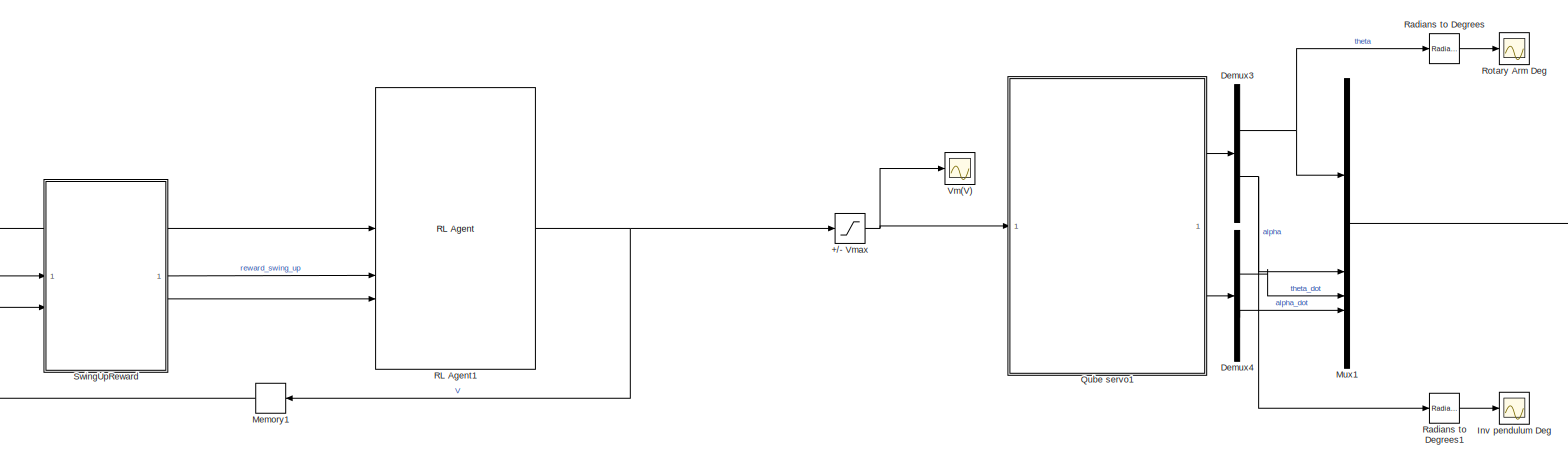
[diagram: root canvas - part 1/1, most of the canvas]
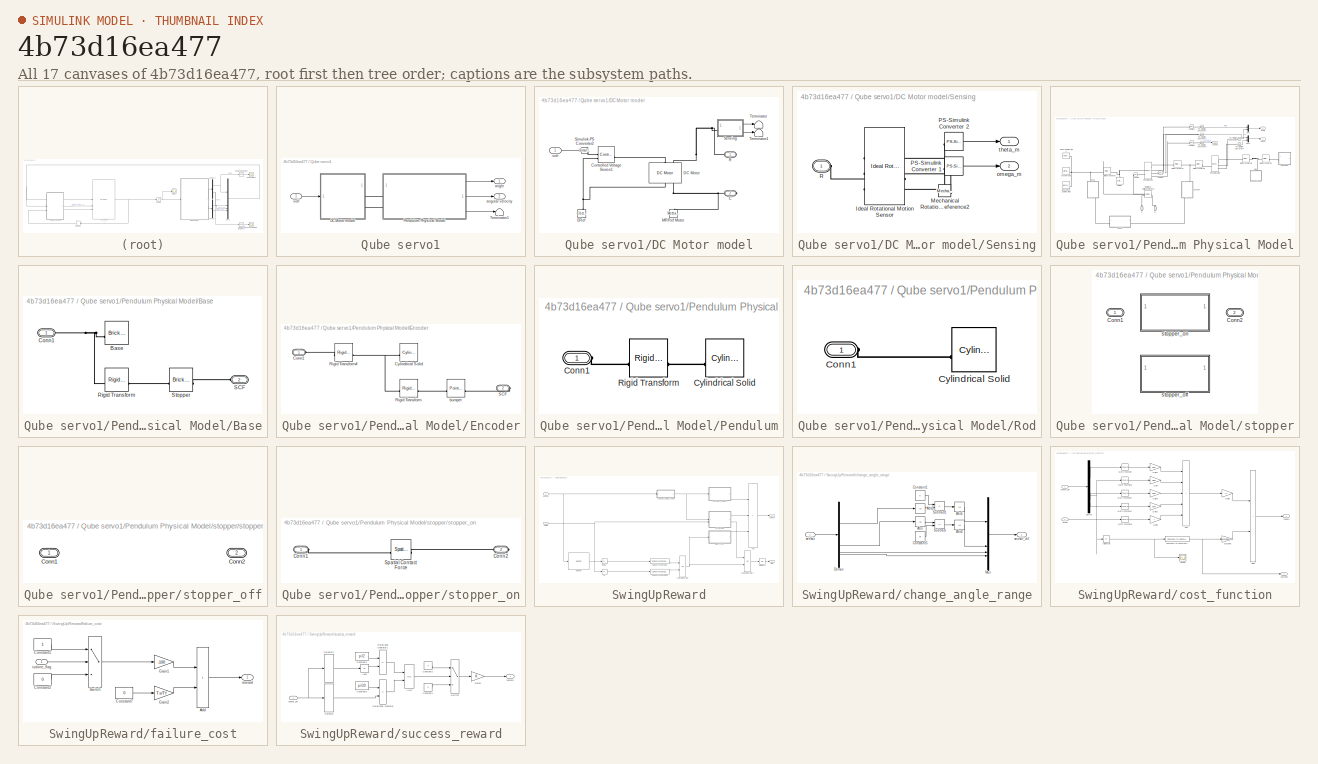
[diagram: thumbnail index - all 17 canvases of the model, root first then tree order]
MODEL slx_4b73d16ea477
KIND model
CONFIG AbsTol = auto
CONFIG EnableMultiTasking = off
CONFIG FixedStep = auto
CONFIG MaxStep = auto
CONFIG MinStep = auto
CONFIG RelTol = 1e-3
CONFIG SampleTimeConstraint = Unconstrained
CONFIG SolverName = VariableStepAuto
CONFIG StartTime = 0.0
CONFIG StopTime = 10.0
BLOCK [Saturate] +//- Vmax
  LowerLimit = -Vmax
  UpperLimit = Vmax
BLOCK [Demux] Demux3
  Outputs = 2
BLOCK [Demux] Demux4
  Outputs = 2
BLOCK [Scope] Inv pendulum Deg
  Floating = off
  NumInputPorts = 1
  ScopeSpecificationString = Simulink.scopes.TimeScopeBlockCfg('CurrentConfiguration', extmgr.ConfigurationSet(extmgr.Configuration('Core','General UI',true),extmgr.Configuration('Core','Source UI',true),extmgr.Configuration('Sources','WiredSimulink',true,'DataLoggingVariableName','ScopeData1'),extmgr.Configuration('Visuals','Time Domain',true,'SerializedDisplays',{struct('MinYLimReal','112.10725','MaxYLimReal','139.96479','Y...<+1439ch>
BLOCK [Memory] Memory1
BLOCK [Mux] Mux1
  DisplayOption = bar
BLOCK [SubSystem] Qube servo1
BLOCK [SubSystem] Qube servo1/DC Motor model
BLOCK [PMIOPort] Qube servo1/DC Motor model/C
  Port = 2
  Side = Right
BLOCK [Reference] Qube servo1/DC Motor model/Controlled Voltage Source1  REF=fl_lib/Electrical/Electrical Sources/Controlled Voltage
Source
  SourceBlock = fl_lib/Electrical/Electrical Sources/Controlled Voltage\nSource
  SourceType = Controlled Voltage\nSource
BLOCK [Reference] Qube servo1/DC Motor model/DC Motor  REF=ee_lib/Electromechanical/Brushed Motors/DC Motor
  NameLocation = left
  SourceBlock = ee_lib/Electromechanical/Brushed Motors/DC Motor
  SourceType = DC Motor
BLOCK [Reference] Qube servo1/DC Motor model/ERef  REF=fl_lib/Electrical/Electrical Elements/Electrical Reference
  NameLocation = right
  SourceBlock = fl_lib/Electrical/Electrical Elements/Electrical Reference
  SourceType = Electrical Reference
BLOCK [Reference] Qube servo1/DC Motor model/MRRef Motor  REF=fl_lib/Mechanical/Rotational Elements/Mechanical
Rotational Reference
  NameLocation = left
  SourceBlock = fl_lib/Mechanical/Rotational Elements/Mechanical\nRotational Reference
  SourceType = Mechanical\nRotational Reference
BLOCK [PMIOPort] Qube servo1/DC Motor model/R
  Side = Right
BLOCK [SubSystem] Qube servo1/DC Motor model/Sensing
BLOCK [Reference] Qube servo1/DC Motor model/Sensing/Ideal Rotational Motion Sensor  REF=fl_lib/Mechanical/Mechanical Sensors/Ideal Rotational
Motion Sensor
  NameLocation = top
  SourceBlock = fl_lib/Mechanical/Mechanical Sensors/Ideal Rotational\nMotion Sensor
  SourceType = Ideal Rotational\nMotion Sensor
BLOCK [Reference] Qube servo1/DC Motor model/Sensing/Mechanical Rotational Reference2  REF=fl_lib/Mechanical/Rotational Elements/Mechanical
Rotational Reference
  SourceBlock = fl_lib/Mechanical/Rotational Elements/Mechanical\nRotational Reference
  SourceType = Mechanical\nRotational Reference
BLOCK [Reference] Qube servo1/DC Motor model/Sensing/PS-Simulink Converter 1  REF=nesl_utility/PS-Simulink
Converter
  SourceBlock = nesl_utility/PS-Simulink\nConverter
  SourceType = PS-Simulink\nConverter
BLOCK [Reference] Qube servo1/DC Motor model/Sensing/PS-Simulink Converter 2  REF=nesl_utility/PS-Simulink
Converter
  SourceBlock = nesl_utility/PS-Simulink\nConverter
  SourceType = PS-Simulink\nConverter
BLOCK [PMIOPort] Qube servo1/DC Motor model/Sensing/R
  NameLocation = top
  Side = Left
BLOCK [Outport] Qube servo1/DC Motor model/Sensing/omega_m
  Port = 2
  VectorParamsAs1DForOutWhenUnconnected = off
BLOCK [Outport] Qube servo1/DC Motor model/Sensing/theta_m
  VectorParamsAs1DForOutWhenUnconnected = off
BLOCK [Reference] Qube servo1/DC Motor model/Simulink-PS Converter2  REF=nesl_utility/Simulink-PS
Converter
  SourceBlock = nesl_utility/Simulink-PS\nConverter
  SourceType = Simulink-PS\nConverter
BLOCK [Terminator] Qube servo1/DC Motor model/Terminator
BLOCK [Terminator] Qube servo1/DC Motor model/Terminator1
BLOCK [Inport] Qube servo1/DC Motor model/volt
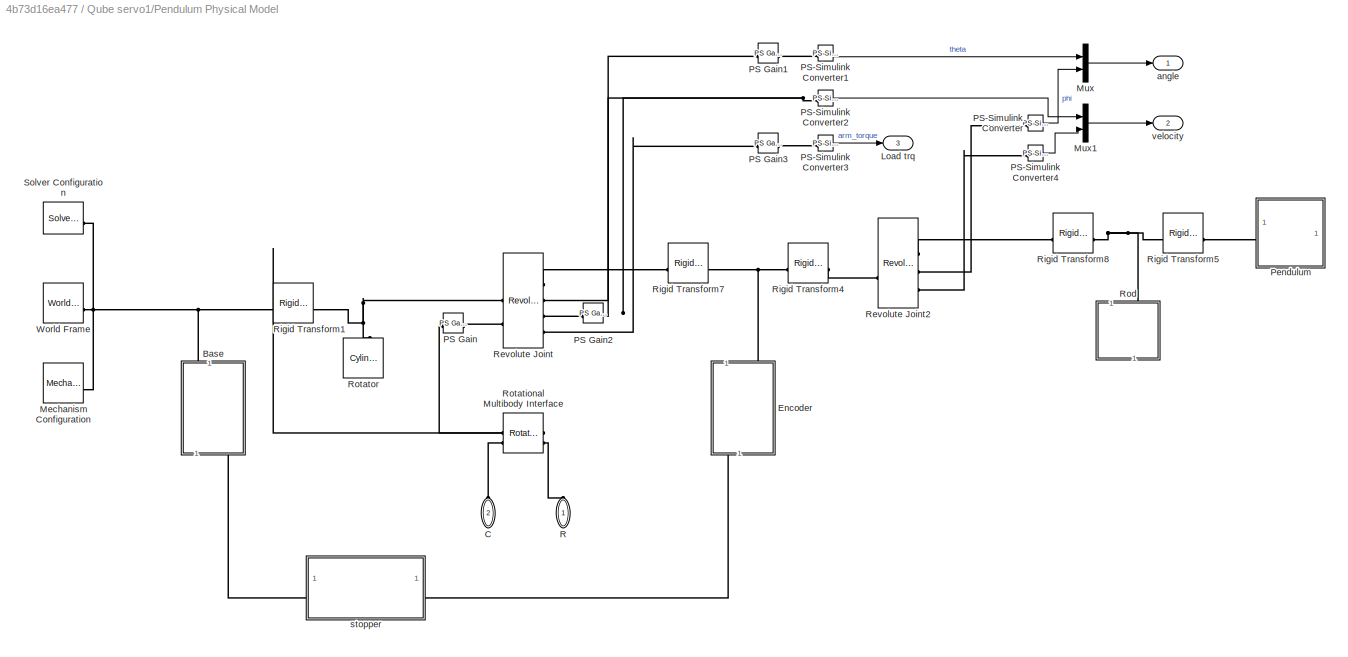
BLOCK [SubSystem] Qube servo1/Pendulum Physical Model
BLOCK [SubSystem] Qube servo1/Pendulum Physical Model/Base
  NameLocation = left
BLOCK [Reference] Qube servo1/Pendulum Physical Model/Base/Base  REF=sm_lib/Body Elements/Brick Solid
  NameLocation = top
  SourceBlock = sm_lib/Body Elements/Brick Solid
  SourceType = Brick Solid
BLOCK [PMIOPort] Qube servo1/Pendulum Physical Model/Base/Conn1
  NameLocation = top
  Side = Right
BLOCK [Reference] Qube servo1/Pendulum Physical Model/Base/Rigid Transform  REF=sm_lib/Frames and
Transforms/Rigid
Transform
  SourceBlock = sm_lib/Frames and\nTransforms/Rigid\nTransform
  SourceType = Rigid\nTransform
BLOCK [PMIOPort] Qube servo1/Pendulum Physical Model/Base/SCF
  Port = 2
  Side = Left
BLOCK [Reference] Qube servo1/Pendulum Physical Model/Base/Stopper  REF=sm_lib/Body Elements/Brick Solid
  SourceBlock = sm_lib/Body Elements/Brick Solid
  SourceType = Brick Solid
BLOCK [PMIOPort] Qube servo1/Pendulum Physical Model/C
  NameLocation = left
  Port = 2
  Side = Left
BLOCK [SubSystem] Qube servo1/Pendulum Physical Model/Encoder
  NameLocation = left
BLOCK [PMIOPort] Qube servo1/Pendulum Physical Model/Encoder/Conn1
  Side = Left
BLOCK [Reference] Qube servo1/Pendulum Physical Model/Encoder/Cylindrical Solid  REF=sm_lib/Body Elements/Cylindrical Solid
  NameLocation = top
  SourceBlock = sm_lib/Body Elements/Cylindrical Solid
  SourceType = Cylindrical Solid
BLOCK [Reference] Qube servo1/Pendulum Physical Model/Encoder/Rigid Transform  REF=sm_lib/Frames and
Transforms/Rigid
Transform
  SourceBlock = sm_lib/Frames and\nTransforms/Rigid\nTransform
  SourceType = Rigid\nTransform
BLOCK [Reference] Qube servo1/Pendulum Physical Model/Encoder/Rigid Transform4  REF=sm_lib/Frames and
Transforms/Rigid
Transform
  SourceBlock = sm_lib/Frames and\nTransforms/Rigid\nTransform
  SourceType = Rigid\nTransform
BLOCK [PMIOPort] Qube servo1/Pendulum Physical Model/Encoder/SCF
  Port = 2
  Side = Right
BLOCK [Reference] Qube servo1/Pendulum Physical Model/Encoder/bumper  REF=sm_lib/Curves and Surfaces/Point Cloud
  SourceBlock = sm_lib/Curves and Surfaces/Point Cloud
  SourceType = Point Cloud
BLOCK [Outport] Qube servo1/Pendulum Physical Model/Load trq
  Port = 3
BLOCK [Reference] Qube servo1/Pendulum Physical Model/Mechanism Configuration  REF=sm_lib/Utilities/Mechanism
Configuration
  SourceBlock = sm_lib/Utilities/Mechanism\nConfiguration
  SourceType = Mechanism\nConfiguration
BLOCK [Mux] Qube servo1/Pendulum Physical Model/Mux
  DisplayOption = bar
  Inputs = 2
BLOCK [Mux] Qube servo1/Pendulum Physical Model/Mux1
  DisplayOption = bar
  Inputs = 2
BLOCK [Reference] Qube servo1/Pendulum Physical Model/PS Gain  REF=fl_lib/Physical Signals/Functions/PS Gain
  SourceBlock = fl_lib/Physical Signals/Functions/PS Gain
  SourceType = PS Gain
BLOCK [Reference] Qube servo1/Pendulum Physical Model/PS Gain1  REF=fl_lib/Physical Signals/Functions/PS Gain
  SourceBlock = fl_lib/Physical Signals/Functions/PS Gain
  SourceType = PS Gain
BLOCK [Reference] Qube servo1/Pendulum Physical Model/PS Gain2  REF=fl_lib/Physical Signals/Functions/PS Gain
  SourceBlock = fl_lib/Physical Signals/Functions/PS Gain
  SourceType = PS Gain
BLOCK [Reference] Qube servo1/Pendulum Physical Model/PS Gain3  REF=fl_lib/Physical Signals/Functions/PS Gain
  SourceBlock = fl_lib/Physical Signals/Functions/PS Gain
  SourceType = PS Gain
BLOCK [Reference] Qube servo1/Pendulum Physical Model/PS-Simulink Converter  REF=nesl_utility/PS-Simulink
Converter
  SourceBlock = nesl_utility/PS-Simulink\nConverter
  SourceType = PS-Simulink\nConverter
BLOCK [Reference] Qube servo1/Pendulum Physical Model/PS-Simulink Converter1  REF=nesl_utility/PS-Simulink
Converter
  SourceBlock = nesl_utility/PS-Simulink\nConverter
  SourceType = PS-Simulink\nConverter
BLOCK [Reference] Qube servo1/Pendulum Physical Model/PS-Simulink Converter2  REF=nesl_utility/PS-Simulink
Converter
  SourceBlock = nesl_utility/PS-Simulink\nConverter
  SourceType = PS-Simulink\nConverter
BLOCK [Reference] Qube servo1/Pendulum Physical Model/PS-Simulink Converter3  REF=nesl_utility/PS-Simulink
Converter
  SourceBlock = nesl_utility/PS-Simulink\nConverter
  SourceType = PS-Simulink\nConverter
BLOCK [Reference] Qube servo1/Pendulum Physical Model/PS-Simulink Converter4  REF=nesl_utility/PS-Simulink
Converter
  SourceBlock = nesl_utility/PS-Simulink\nConverter
  SourceType = PS-Simulink\nConverter
BLOCK [SubSystem] Qube servo1/Pendulum Physical Model/Pendulum
BLOCK [PMIOPort] Qube servo1/Pendulum Physical Model/Pendulum/Conn1
  Side = Left
BLOCK [Reference] Qube servo1/Pendulum Physical Model/Pendulum/Cylindrical Solid  REF=sm_lib/Body Elements/Cylindrical Solid
  NameLocation = top
  SourceBlock = sm_lib/Body Elements/Cylindrical Solid
  SourceType = Cylindrical Solid
BLOCK [Reference] Qube servo1/Pendulum Physical Model/Pendulum/Rigid Transform  REF=sm_lib/Frames and
Transforms/Rigid
Transform
  SourceBlock = sm_lib/Frames and\nTransforms/Rigid\nTransform
  SourceType = Rigid\nTransform
BLOCK [PMIOPort] Qube servo1/Pendulum Physical Model/R
  NameLocation = left
  Side = Left
BLOCK [Reference] Qube servo1/Pendulum Physical Model/Revolute Joint  REF=sm_lib/Joints/Revolute Joint
  SourceBlock = sm_lib/Joints/Revolute Joint
  SourceType = Revolute Joint
BLOCK [Reference] Qube servo1/Pendulum Physical Model/Revolute Joint2  REF=sm_lib/Joints/Revolute Joint
  SourceBlock = sm_lib/Joints/Revolute Joint
  SourceType = Revolute Joint
BLOCK [Reference] Qube servo1/Pendulum Physical Model/Rigid Transform1  REF=sm_lib/Frames and
Transforms/Rigid
Transform
  SourceBlock = sm_lib/Frames and\nTransforms/Rigid\nTransform
  SourceType = Rigid\nTransform
BLOCK [Reference] Qube servo1/Pendulum Physical Model/Rigid Transform4  REF=sm_lib/Frames and
Transforms/Rigid
Transform
  SourceBlock = sm_lib/Frames and\nTransforms/Rigid\nTransform
  SourceType = Rigid\nTransform
BLOCK [Reference] Qube servo1/Pendulum Physical Model/Rigid Transform5  REF=sm_lib/Frames and
Transforms/Rigid
Transform
  SourceBlock = sm_lib/Frames and\nTransforms/Rigid\nTransform
  SourceType = Rigid\nTransform
BLOCK [Reference] Qube servo1/Pendulum Physical Model/Rigid Transform7  REF=sm_lib/Frames and
Transforms/Rigid
Transform
  SourceBlock = sm_lib/Frames and\nTransforms/Rigid\nTransform
  SourceType = Rigid\nTransform
BLOCK [Reference] Qube servo1/Pendulum Physical Model/Rigid Transform8  REF=sm_lib/Frames and
Transforms/Rigid
Transform
  SourceBlock = sm_lib/Frames and\nTransforms/Rigid\nTransform
  SourceType = Rigid\nTransform
BLOCK [SubSystem] Qube servo1/Pendulum Physical Model/Rod
BLOCK [PMIOPort] Qube servo1/Pendulum Physical Model/Rod/Conn1
  Side = Left
BLOCK [Reference] Qube servo1/Pendulum Physical Model/Rod/Cylindrical Solid  REF=sm_lib/Body Elements/Cylindrical Solid
  NameLocation = top
  SourceBlock = sm_lib/Body Elements/Cylindrical Solid
  SourceType = Cylindrical Solid
BLOCK [Reference] Qube servo1/Pendulum Physical Model/Rotational Multibody Interface  REF=fl_lib/Mechanical/Multibody Interfaces/Rotational Multibody
Interface
  SourceBlock = fl_lib/Mechanical/Multibody Interfaces/Rotational Multibody\nInterface
  SourceType = Rotational Multibody\nInterface
BLOCK [Reference] Qube servo1/Pendulum Physical Model/Rotator  REF=sm_lib/Body Elements/Cylindrical Solid
  NameLocation = right
  SourceBlock = sm_lib/Body Elements/Cylindrical Solid
  SourceType = Cylindrical Solid
BLOCK [Reference] Qube servo1/Pendulum Physical Model/Solver Configuration  REF=nesl_utility/Solver
Configuration
  SourceBlock = nesl_utility/Solver\nConfiguration
  SourceType = Solver\nConfiguration
BLOCK [Reference] Qube servo1/Pendulum Physical Model/World Frame  REF=sm_lib/Frames and
Transforms/World Frame
  SourceBlock = sm_lib/Frames and\nTransforms/World Frame
  SourceType = World Frame
BLOCK [Outport] Qube servo1/Pendulum Physical Model/angle
BLOCK [SubSystem] Qube servo1/Pendulum Physical Model/stopper
  LabelModeActiveChoice = Choice_Qube_Stopper_Off
  Variant = on
  VariantControl = Choice
  VariantControlMode = label
BLOCK [PMIOPort] Qube servo1/Pendulum Physical Model/stopper/Conn1
  Side = Left
BLOCK [PMIOPort] Qube servo1/Pendulum Physical Model/stopper/Conn2
  Port = 2
  Side = Right
BLOCK [SubSystem] Qube servo1/Pendulum Physical Model/stopper/stopper_off
  VariantControl = Choice_Qube_Stopper_Off
BLOCK [PMIOPort] Qube servo1/Pendulum Physical Model/stopper/stopper_off/Conn1
  Side = Left
BLOCK [PMIOPort] Qube servo1/Pendulum Physical Model/stopper/stopper_off/Conn2
  Port = 2
  Side = Right
BLOCK [SubSystem] Qube servo1/Pendulum Physical Model/stopper/stopper_on
  VariantControl = Choice_Qube_Stopper_On
BLOCK [PMIOPort] Qube servo1/Pendulum Physical Model/stopper/stopper_on/Conn1
  Side = Left
BLOCK [PMIOPort] Qube servo1/Pendulum Physical Model/stopper/stopper_on/Conn2
  Port = 2
  Side = Right
BLOCK [Reference] Qube servo1/Pendulum Physical Model/stopper/stopper_on/Spatial Contact Force  REF=sm_lib/Forces and
Torques/Spatial
Contact Force
  SourceBlock = sm_lib/Forces and\nTorques/Spatial\nContact Force
  SourceType = Spatial\nContact Force
BLOCK [Outport] Qube servo1/Pendulum Physical Model/velocity
  Port = 2
BLOCK [Terminator] Qube servo1/Terminator1
BLOCK [Outport] Qube servo1/angle
BLOCK [Outport] Qube servo1/angular velocity
  Port = 2
BLOCK [Inport] Qube servo1/volt
BLOCK [Reference] RL Agent1  REF=rllib/RL Agent
  SourceBlock = rllib/RL Agent
  SourceType = RL Agent
BLOCK [Reference] Radians to Degrees  REF=simulink_extras/Transformations/Radians
to Degrees
  SourceBlock = simulink_extras/Transformations/Radians\nto Degrees
  SourceType = RadiansToDegrees
BLOCK [Reference] Radians to Degrees1  REF=simulink_extras/Transformations/Radians
to Degrees
  SourceBlock = simulink_extras/Transformations/Radians\nto Degrees
  SourceType = RadiansToDegrees
BLOCK [Scope] Rotary Arm Deg
  Floating = off
  NumInputPorts = 1
  ScopeSpecificationString = Simulink.scopes.TimeScopeBlockCfg('CurrentConfiguration', extmgr.ConfigurationSet(extmgr.Configuration('Core','General UI',true),extmgr.Configuration('Core','Source UI',true),extmgr.Configuration('Sources','WiredSimulink',true,'DataLoggingVariableName','ScopeData2'),extmgr.Configuration('Visuals','Time Domain',true,'SerializedDisplays',{struct('MinYLimReal','-13.88536','MaxYLimReal','-9.40845','YL...<+1435ch>
BLOCK [SubSystem] SwingUpReward
  VariantControl = VARIANT_INV_POS
BLOCK [Sum] SwingUpReward/Add
  IconShape = rectangular
  Inputs = +++
BLOCK [Reference] SwingUpReward/Compare To Constant  REF=simulink/Logic and Bit
Operations/Compare
To Constant
  SourceBlock = simulink/Logic and Bit\nOperations/Compare\nTo Constant
  SourceType = Compare To Constant
BLOCK [Reference] SwingUpReward/Compare To Constant2  REF=simulink/Logic and Bit
Operations/Compare
To Constant
  SourceBlock = simulink/Logic and Bit\nOperations/Compare\nTo Constant
  SourceType = Compare To Constant
BLOCK [Logic] SwingUpReward/Logical Operator
  AllPortsSameDT = off
  Operator = OR
  OutDataTypeStr = boolean
BLOCK [Logic] SwingUpReward/Logical Operator1
  AllPortsSameDT = off
  Operator = OR
  OutDataTypeStr = boolean
BLOCK [Selector] SwingUpReward/Selector
  IndexOptions = Index vector (dialog)
  Indices = [1]
  InputPortWidth = 4
  OutputSizes = 1
BLOCK [UnitDelay] SwingUpReward/Unit Delay1
  HasFrameUpgradeWarning = on
  SampleTime = -1
BLOCK [Inport] SwingUpReward/action
  Port = 2
BLOCK [SubSystem] SwingUpReward/change_angle_range
BLOCK [Abs] SwingUpReward/change_angle_range/Abs
  SaturateOnIntegerOverflow = off
BLOCK [Abs] SwingUpReward/change_angle_range/Abs1
  SaturateOnIntegerOverflow = off
BLOCK [Abs] SwingUpReward/change_angle_range/Abs2
  SaturateOnIntegerOverflow = off
BLOCK [Abs] SwingUpReward/change_angle_range/Abs3
  SaturateOnIntegerOverflow = off
BLOCK [Constant] SwingUpReward/change_angle_range/Constant1
  Value = 0
BLOCK [Constant] SwingUpReward/change_angle_range/Constant5
  Value = pi
BLOCK [Demux] SwingUpReward/change_angle_range/Demux
BLOCK [Mux] SwingUpReward/change_angle_range/Mux
  DisplayOption = bar
BLOCK [Sum] SwingUpReward/change_angle_range/Subtract
  IconShape = rectangular
  Inputs = -+
BLOCK [Sum] SwingUpReward/change_angle_range/Subtract1
  IconShape = rectangular
  Inputs = +-
BLOCK [Inport] SwingUpReward/change_angle_range/sensor
BLOCK [Outport] SwingUpReward/change_angle_range/sensor_dif
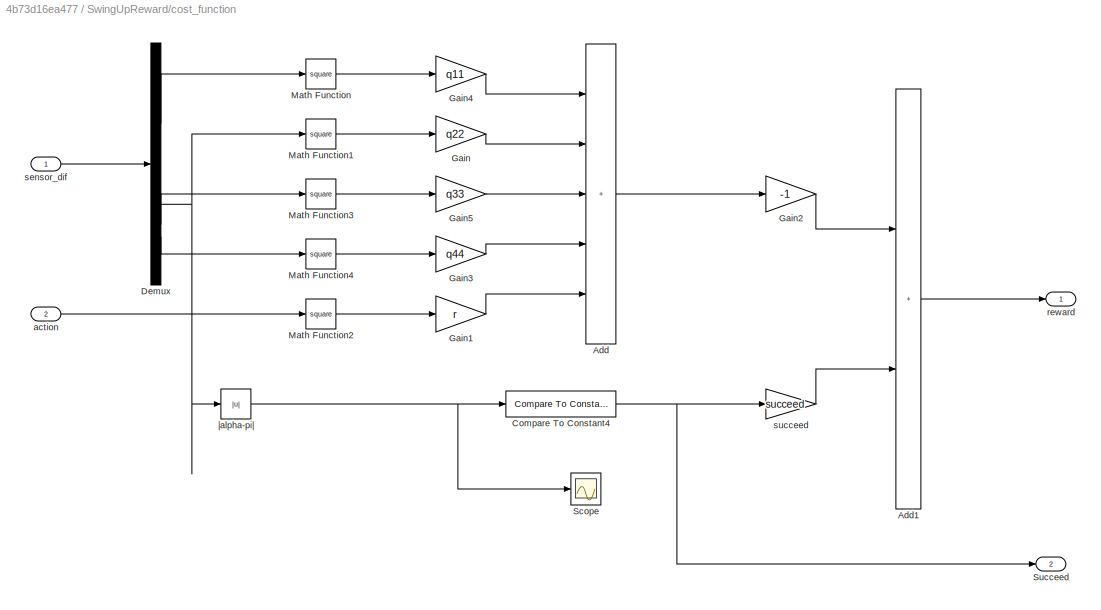
BLOCK [SubSystem] SwingUpReward/cost_function
BLOCK [Sum] SwingUpReward/cost_function/Add
  IconShape = rectangular
  Inputs = +++++
BLOCK [Sum] SwingUpReward/cost_function/Add1
  IconShape = rectangular
BLOCK [Reference] SwingUpReward/cost_function/Compare To Constant4  REF=simulink/Logic and Bit
Operations/Compare
To Constant
  SourceBlock = simulink/Logic and Bit\nOperations/Compare\nTo Constant
  SourceType = Compare To Constant
BLOCK [Demux] SwingUpReward/cost_function/Demux
BLOCK [Gain] SwingUpReward/cost_function/Gain
  Gain = q22
BLOCK [Gain] SwingUpReward/cost_function/Gain1
  Gain = r
BLOCK [Gain] SwingUpReward/cost_function/Gain2
  Gain = -1
BLOCK [Gain] SwingUpReward/cost_function/Gain3
  Gain = q44
BLOCK [Gain] SwingUpReward/cost_function/Gain4
  Gain = q11
BLOCK [Gain] SwingUpReward/cost_function/Gain5
  Gain = q33
BLOCK [Math] SwingUpReward/cost_function/Math Function
  Operator = square
BLOCK [Math] SwingUpReward/cost_function/Math Function1
  Operator = square
BLOCK [Math] SwingUpReward/cost_function/Math Function2
  Operator = square
BLOCK [Math] SwingUpReward/cost_function/Math Function3
  Operator = square
BLOCK [Math] SwingUpReward/cost_function/Math Function4
  Operator = square
BLOCK [Scope] SwingUpReward/cost_function/Scope
  Floating = off
  NumInputPorts = 1
  ScopeSpecificationString = Simulink.scopes.TimeScopeBlockCfg('CurrentConfiguration', extmgr.ConfigurationSet(extmgr.Configuration('Core','General UI',true),extmgr.Configuration('Core','Source UI',true),extmgr.Configuration('Sources','WiredSimulink',true,'DataLoggingVariableName','ScopeData1'),extmgr.Configuration('Visuals','Time Domain',true,'SerializedDisplays',{struct('MinYLimReal','0.17912','MaxYLimReal','0.53791','YLabe...<+1398ch>
BLOCK [Outport] SwingUpReward/cost_function/Succeed
  Port = 2
BLOCK [Inport] SwingUpReward/cost_function/action
  Port = 2
BLOCK [Outport] SwingUpReward/cost_function/reward
BLOCK [Inport] SwingUpReward/cost_function/sensor_dif
BLOCK [Gain] SwingUpReward/cost_function/succeed
  Gain = succeed
BLOCK [Abs] SwingUpReward/cost_function/|alpha-pi|
  SaturateOnIntegerOverflow = off
BLOCK [SubSystem] SwingUpReward/failure_cost
BLOCK [Sum] SwingUpReward/failure_cost/Add
  IconShape = rectangular
BLOCK [Constant] SwingUpReward/failure_cost/Constant1
BLOCK [Constant] SwingUpReward/failure_cost/Constant2
  Value = 0
BLOCK [Constant] SwingUpReward/failure_cost/Constant7
  Value = 0
BLOCK [Gain] SwingUpReward/failure_cost/Gain1
  Gain = -100
BLOCK [Gain] SwingUpReward/failure_cost/Gain2
  Gain = Ts/Tf
BLOCK [Switch] SwingUpReward/failure_cost/Switch
  Criteria = u2 > Threshold
  InputSameDT = off
  SaturateOnIntegerOverflow = off
BLOCK [Inport] SwingUpReward/failure_cost/isdone_flag
BLOCK [Outport] SwingUpReward/failure_cost/reward
BLOCK [Outport] SwingUpReward/reward
BLOCK [Inport] SwingUpReward/sensor
BLOCK [Outport] SwingUpReward/stop
  Port = 2
BLOCK [SubSystem] SwingUpReward/success_reward
BLOCK [Logic] SwingUpReward/success_reward/AND
  AllPortsSameDT = off
  IconShape = distinctive
  OutDataTypeStr = boolean
BLOCK [Abs] SwingUpReward/success_reward/Abs1
  SaturateOnIntegerOverflow = off
BLOCK [Constant] SwingUpReward/success_reward/Constant1
  Value = 0
BLOCK [Constant] SwingUpReward/success_reward/Constant2
  Value = 0
BLOCK [Constant] SwingUpReward/success_reward/Constant3
  Value = pi/30
BLOCK [Constant] SwingUpReward/success_reward/Constant4
  Value = pi/2
BLOCK [Gain] SwingUpReward/success_reward/Gain6
BLOCK [RelationalOperator] SwingUpReward/success_reward/Relational Operator
  InputSameDT = off
  Operator = <=
  OutDataTypeStr = boolean
  RndMeth = Simplest
BLOCK [RelationalOperator] SwingUpReward/success_reward/Relational Operator1
  InputSameDT = off
  Operator = <=
  OutDataTypeStr = boolean
  RndMeth = Simplest
BLOCK [Selector] SwingUpReward/success_reward/Selector
  IndexOptions = Index vector (dialog)
  Indices = [2]
  InputPortWidth = 4
  OutputSizes = 1
BLOCK [Selector] SwingUpReward/success_reward/Selector1
  IndexOptions = Index vector (dialog)
  Indices = [1]
  InputPortWidth = 4
  OutputSizes = 1
BLOCK [Switch] SwingUpReward/success_reward/Switch
  Criteria = u2 ~= 0
  InputSameDT = off
  SaturateOnIntegerOverflow = off
BLOCK [Outport] SwingUpReward/success_reward/reward
BLOCK [Inport] SwingUpReward/success_reward/sensor_dif
BLOCK [Abs] SwingUpReward/|theta|
  SaturateOnIntegerOverflow = off
BLOCK [Abs] SwingUpReward/|u|
  SaturateOnIntegerOverflow = off
BLOCK [Scope] Vm(V)
  Floating = off
  NumInputPorts = 1
  ScopeSpecificationString = Simulink.scopes.TimeScopeBlockCfg('CurrentConfiguration', extmgr.ConfigurationSet(extmgr.Configuration('Core','General UI',true),extmgr.Configuration('Core','Source UI',true),extmgr.Configuration('Sources','WiredSimulink',true,'DataLoggingVariableName','ScopeData3'),extmgr.Configuration('Visuals','Time Domain',true,'SerializedDisplays',{struct('MinYLimReal','-1.00000','MaxYLimReal','1.00000','YLab...<+1367ch>
NET +//- Vmax:1 -> Qube servo1:1, Vm(V):1
NET Demux3:1 -> Mux1:1, Radians to Degrees:1
NET Demux3:2 -> Mux1:2, Radians to Degrees1:1
LINE Demux4:1 -> Mux1:3
LINE Demux4:2 -> Mux1:4
LINE Memory1:1 -> SwingUpReward:2
NET Mux1:1 -> RL Agent1:1, SwingUpReward:1
LINE Qube servo1/DC Motor model/Sensing/PS-Simulink Converter 1:1 -> Qube servo1/DC Motor model/Sensing/omega_m:1
LINE Qube servo1/DC Motor model/Sensing/PS-Simulink Converter 2:1 -> Qube servo1/DC Motor model/Sensing/theta_m:1
LINE Qube servo1/DC Motor model/Sensing:1 -> Qube servo1/DC Motor model/Terminator:1
LINE Qube servo1/DC Motor model/Sensing:2 -> Qube servo1/DC Motor model/Terminator1:1
LINE Qube servo1/DC Motor model/volt:1 -> Qube servo1/DC Motor model/Simulink-PS Converter2:1
LINE Qube servo1/Pendulum Physical Model/Mux1:1 -> Qube servo1/Pendulum Physical Model/velocity:1
LINE Qube servo1/Pendulum Physical Model/Mux:1 -> Qube servo1/Pendulum Physical Model/angle:1
LINE Qube servo1/Pendulum Physical Model/PS-Simulink Converter1:1 -> Qube servo1/Pendulum Physical Model/Mux:1
LINE Qube servo1/Pendulum Physical Model/PS-Simulink Converter2:1 -> Qube servo1/Pendulum Physical Model/Mux1:1
LINE Qube servo1/Pendulum Physical Model/PS-Simulink Converter3:1 -> Qube servo1/Pendulum Physical Model/Load trq:1
LINE Qube servo1/Pendulum Physical Model/PS-Simulink Converter4:1 -> Qube servo1/Pendulum Physical Model/Mux1:2
LINE Qube servo1/Pendulum Physical Model/PS-Simulink Converter:1 -> Qube servo1/Pendulum Physical Model/Mux:2
LINE Qube servo1/Pendulum Physical Model:1 -> Qube servo1/angle:1
LINE Qube servo1/Pendulum Physical Model:2 -> Qube servo1/angular velocity:1
LINE Qube servo1/Pendulum Physical Model:3 -> Qube servo1/Terminator1:1
LINE Qube servo1/volt:1 -> Qube servo1/DC Motor model:1
LINE Qube servo1:1 -> Demux3:1
LINE Qube servo1:2 -> Demux4:1
NET RL Agent1:1 -> +//- Vmax:1, Memory1:1
LINE Radians to Degrees1:1 -> Inv pendulum Deg:1
LINE Radians to Degrees:1 -> Rotary Arm Deg:1
LINE SwingUpReward/Add:1 -> SwingUpReward/reward:1
LINE SwingUpReward/Compare To Constant2:1 -> SwingUpReward/Logical Operator:2
LINE SwingUpReward/Compare To Constant:1 -> SwingUpReward/Logical Operator:1
LINE SwingUpReward/Logical Operator1:1 -> SwingUpReward/Unit Delay1:1
NET SwingUpReward/Logical Operator:1 -> SwingUpReward/Logical Operator1:2, SwingUpReward/failure_cost:1
LINE SwingUpReward/Selector:1 -> SwingUpReward/|theta|:1
LINE SwingUpReward/Unit Delay1:1 -> SwingUpReward/stop:1
NET SwingUpReward/action:1 -> SwingUpReward/cost_function:2, SwingUpReward/|u|:1
LINE SwingUpReward/change_angle_range/Abs1:1 -> SwingUpReward/change_angle_range/Mux:1
LINE SwingUpReward/change_angle_range/Abs2:1 -> SwingUpReward/change_angle_range/Mux:2
LINE SwingUpReward/change_angle_range/Abs3:1 -> SwingUpReward/change_angle_range/Subtract1:2
LINE SwingUpReward/change_angle_range/Abs:1 -> SwingUpReward/change_angle_range/Subtract:1
LINE SwingUpReward/change_angle_range/Constant1:1 -> SwingUpReward/change_angle_range/Subtract1:1
LINE SwingUpReward/change_angle_range/Constant5:1 -> SwingUpReward/change_angle_range/Subtract:2
LINE SwingUpReward/change_angle_range/Demux:1 -> SwingUpReward/change_angle_range/Abs3:1
LINE SwingUpReward/change_angle_range/Demux:2 -> SwingUpReward/change_angle_range/Abs:1
LINE SwingUpReward/change_angle_range/Demux:3 -> SwingUpReward/change_angle_range/Mux:3
LINE SwingUpReward/change_angle_range/Demux:4 -> SwingUpReward/change_angle_range/Mux:4
LINE SwingUpReward/change_angle_range/Mux:1 -> SwingUpReward/change_angle_range/sensor_dif:1
LINE SwingUpReward/change_angle_range/Subtract1:1 -> SwingUpReward/change_angle_range/Abs1:1
LINE SwingUpReward/change_angle_range/Subtract:1 -> SwingUpReward/change_angle_range/Abs2:1
LINE SwingUpReward/change_angle_range/sensor:1 -> SwingUpReward/change_angle_range/Demux:1
NET SwingUpReward/change_angle_range:1 -> SwingUpReward/cost_function:1, SwingUpReward/success_reward:1
LINE SwingUpReward/cost_function/Add1:1 -> SwingUpReward/cost_function/reward:1
LINE SwingUpReward/cost_function/Add:1 -> SwingUpReward/cost_function/Gain2:1
NET SwingUpReward/cost_function/Compare To Constant4:1 -> SwingUpReward/cost_function/Succeed:1, SwingUpReward/cost_function/succeed:1
LINE SwingUpReward/cost_function/Demux:1 -> SwingUpReward/cost_function/Math Function:1
NET SwingUpReward/cost_function/Demux:2 -> SwingUpReward/cost_function/Math Function1:1, SwingUpReward/cost_function/|alpha-pi|:1
LINE SwingUpReward/cost_function/Demux:3 -> SwingUpReward/cost_function/Math Function3:1
LINE SwingUpReward/cost_function/Demux:4 -> SwingUpReward/cost_function/Math Function4:1
LINE SwingUpReward/cost_function/Gain1:1 -> SwingUpReward/cost_function/Add:5
LINE SwingUpReward/cost_function/Gain2:1 -> SwingUpReward/cost_function/Add1:1
LINE SwingUpReward/cost_function/Gain3:1 -> SwingUpReward/cost_function/Add:4
LINE SwingUpReward/cost_function/Gain4:1 -> SwingUpReward/cost_function/Add:1
LINE SwingUpReward/cost_function/Gain5:1 -> SwingUpReward/cost_function/Add:3
LINE SwingUpReward/cost_function/Gain:1 -> SwingUpReward/cost_function/Add:2
LINE SwingUpReward/cost_function/Math Function1:1 -> SwingUpReward/cost_function/Gain:1
LINE SwingUpReward/cost_function/Math Function2:1 -> SwingUpReward/cost_function/Gain1:1
LINE SwingUpReward/cost_function/Math Function3:1 -> SwingUpReward/cost_function/Gain5:1
LINE SwingUpReward/cost_function/Math Function4:1 -> SwingUpReward/cost_function/Gain3:1
LINE SwingUpReward/cost_function/Math Function:1 -> SwingUpReward/cost_function/Gain4:1
LINE SwingUpReward/cost_function/action:1 -> SwingUpReward/cost_function/Math Function2:1
LINE SwingUpReward/cost_function/sensor_dif:1 -> SwingUpReward/cost_function/Demux:1
LINE SwingUpReward/cost_function/succeed:1 -> SwingUpReward/cost_function/Add1:2
NET SwingUpReward/cost_function/|alpha-pi|:1 -> SwingUpReward/cost_function/Compare To Constant4:1, SwingUpReward/cost_function/Scope:1
LINE SwingUpReward/cost_function:1 -> SwingUpReward/Add:2
LINE SwingUpReward/cost_function:2 -> SwingUpReward/Logical Operator1:1
LINE SwingUpReward/failure_cost/Add:1 -> SwingUpReward/failure_cost/reward:1
LINE SwingUpReward/failure_cost/Constant1:1 -> SwingUpReward/failure_cost/Switch:1
LINE SwingUpReward/failure_cost/Constant2:1 -> SwingUpReward/failure_cost/Switch:3
LINE SwingUpReward/failure_cost/Constant7:1 -> SwingUpReward/failure_cost/Gain2:1
LINE SwingUpReward/failure_cost/Gain1:1 -> SwingUpReward/failure_cost/Add:1
LINE SwingUpReward/failure_cost/Gain2:1 -> SwingUpReward/failure_cost/Add:2
LINE SwingUpReward/failure_cost/Switch:1 -> SwingUpReward/failure_cost/Gain1:1
LINE SwingUpReward/failure_cost/isdone_flag:1 -> SwingUpReward/failure_cost/Switch:2
LINE SwingUpReward/failure_cost:1 -> SwingUpReward/Add:3
NET SwingUpReward/sensor:1 -> SwingUpReward/Selector:1, SwingUpReward/change_angle_range:1
LINE SwingUpReward/success_reward/AND:1 -> SwingUpReward/success_reward/Switch:2
LINE SwingUpReward/success_reward/Abs1:1 -> SwingUpReward/success_reward/Relational Operator1:2
LINE SwingUpReward/success_reward/Constant1:1 -> SwingUpReward/success_reward/Switch:3
LINE SwingUpReward/success_reward/Constant2:1 -> SwingUpReward/success_reward/Switch:1
LINE SwingUpReward/success_reward/Constant3:1 -> SwingUpReward/success_reward/Relational Operator:1
LINE SwingUpReward/success_reward/Constant4:1 -> SwingUpReward/success_reward/Relational Operator1:1
LINE SwingUpReward/success_reward/Gain6:1 -> SwingUpReward/success_reward/reward:1
LINE SwingUpReward/success_reward/Relational Operator1:1 -> SwingUpReward/success_reward/AND:1
LINE SwingUpReward/success_reward/Relational Operator:1 -> SwingUpReward/success_reward/AND:2
LINE SwingUpReward/success_reward/Selector1:1 -> SwingUpReward/success_reward/Abs1:1
LINE SwingUpReward/success_reward/Selector:1 -> SwingUpReward/success_reward/Relational Operator:2
LINE SwingUpReward/success_reward/Switch:1 -> SwingUpReward/success_reward/Gain6:1
NET SwingUpReward/success_reward/sensor_dif:1 -> SwingUpReward/success_reward/Selector1:1, SwingUpReward/success_reward/Selector:1
LINE SwingUpReward/success_reward:1 -> SwingUpReward/Add:1
LINE SwingUpReward/|theta|:1 -> SwingUpReward/Compare To Constant:1
LINE SwingUpReward/|u|:1 -> SwingUpReward/Compare To Constant2:1
LINE SwingUpReward:1 -> RL Agent1:2
LINE SwingUpReward:2 -> RL Agent1:3
PNET net1: Qube servo1/DC Motor model/C:RConn1 -- Qube servo1/DC Motor model/DC Motor:RConn2 -- Qube servo1/DC Motor model/MRRef Motor:LConn1
PLINE Qube servo1/DC Motor model/Controlled Voltage Source1:LConn1 -- Qube servo1/DC Motor model/DC Motor:LConn1
PLINE Qube servo1/DC Motor model/Controlled Voltage Source1:RConn1 -- Qube servo1/DC Motor model/Simulink-PS Converter2:RConn1
PNET net2: Qube servo1/DC Motor model/Controlled Voltage Source1:RConn2 -- Qube servo1/DC Motor model/DC Motor:RConn1 -- Qube servo1/DC Motor model/ERef:LConn1
PNET net3: Qube servo1/DC Motor model/DC Motor:LConn2 -- Qube servo1/DC Motor model/R:RConn1 -- Qube servo1/DC Motor model/Sensing:LConn1
PLINE Qube servo1/DC Motor model/Sensing/Ideal Rotational Motion Sensor:LConn1 -- Qube servo1/DC Motor model/Sensing/R:RConn1
PLINE Qube servo1/DC Motor model/Sensing/Ideal Rotational Motion Sensor:RConn1 -- Qube servo1/DC Motor model/Sensing/Mechanical Rotational Reference2:LConn1
PLINE Qube servo1/DC Motor model/Sensing/Ideal Rotational Motion Sensor:RConn2 -- Qube servo1/DC Motor model/Sensing/PS-Simulink Converter 1:LConn1
PLINE Qube servo1/DC Motor model/Sensing/Ideal Rotational Motion Sensor:RConn3 -- Qube servo1/DC Motor model/Sensing/PS-Simulink Converter 2:LConn1
PLINE Qube servo1/DC Motor model:RConn1 -- Qube servo1/Pendulum Physical Model:LConn1
PLINE Qube servo1/DC Motor model:RConn2 -- Qube servo1/Pendulum Physical Model:LConn2
PNET net4: Qube servo1/Pendulum Physical Model/Base/Base:RConn1 -- Qube servo1/Pendulum Physical Model/Base/Conn1:RConn1 -- Qube servo1/Pendulum Physical Model/Base/Rigid Transform:LConn1
PLINE Qube servo1/Pendulum Physical Model/Base/Rigid Transform:RConn1 -- Qube servo1/Pendulum Physical Model/Base/Stopper:RConn1
PLINE Qube servo1/Pendulum Physical Model/Base/SCF:RConn1 -- Qube servo1/Pendulum Physical Model/Base/Stopper:LConn1
PLINE Qube servo1/Pendulum Physical Model/Base:LConn1 -- Qube servo1/Pendulum Physical Model/stopper:LConn1
PNET net5: Qube servo1/Pendulum Physical Model/Base:RConn1 -- Qube servo1/Pendulum Physical Model/Mechanism Configuration:RConn1 -- Qube servo1/Pendulum Physical Model/Rigid Transform1:LConn1 -- Qube servo1/Pendulum Physical Model/Solver Configuration:RConn1 -- Qube servo1/Pendulum Physical Model/World Frame:RConn1
PLINE Qube servo1/Pendulum Physical Model/C:RConn1 -- Qube servo1/Pendulum Physical Model/Rotational Multibody Interface:LConn2
PLINE Qube servo1/Pendulum Physical Model/Encoder/Conn1:RConn1 -- Qube servo1/Pendulum Physical Model/Encoder/Rigid Transform4:LConn1
PNET net6: Qube servo1/Pendulum Physical Model/Encoder/Cylindrical Solid:RConn1 -- Qube servo1/Pendulum Physical Model/Encoder/Rigid Transform4:RConn1 -- Qube servo1/Pendulum Physical Model/Encoder/Rigid Transform:LConn1
PLINE Qube servo1/Pendulum Physical Model/Encoder/Rigid Transform:RConn1 -- Qube servo1/Pendulum Physical Model/Encoder/bumper:LConn1
PLINE Qube servo1/Pendulum Physical Model/Encoder/SCF:RConn1 -- Qube servo1/Pendulum Physical Model/Encoder/bumper:RConn1
PNET net7: Qube servo1/Pendulum Physical Model/Encoder:LConn1 -- Qube servo1/Pendulum Physical Model/Rigid Transform4:LConn1 -- Qube servo1/Pendulum Physical Model/Rigid Transform7:RConn1
PLINE Qube servo1/Pendulum Physical Model/Encoder:RConn1 -- Qube servo1/Pendulum Physical Model/stopper:RConn1
PLINE Qube servo1/Pendulum Physical Model/PS Gain1:LConn1 -- Qube servo1/Pendulum Physical Model/Revolute Joint:RConn2
PLINE Qube servo1/Pendulum Physical Model/PS Gain1:RConn1 -- Qube servo1/Pendulum Physical Model/PS-Simulink Converter1:LConn1
PLINE Qube servo1/Pendulum Physical Model/PS Gain2:LConn1 -- Qube servo1/Pendulum Physical Model/Revolute Joint:RConn3
PNET net8: Qube servo1/Pendulum Physical Model/PS Gain2:RConn1 -- Qube servo1/Pendulum Physical Model/PS-Simulink Converter2:LConn1 -- Qube servo1/Pendulum Physical Model/Rotational Multibody Interface:RConn1
PLINE Qube servo1/Pendulum Physical Model/PS Gain3:LConn1 -- Qube servo1/Pendulum Physical Model/Revolute Joint:RConn4
PLINE Qube servo1/Pendulum Physical Model/PS Gain3:RConn1 -- Qube servo1/Pendulum Physical Model/PS-Simulink Converter3:LConn1
PLINE Qube servo1/Pendulum Physical Model/PS Gain:LConn1 -- Qube servo1/Pendulum Physical Model/Rotational Multibody Interface:LConn1
PLINE Qube servo1/Pendulum Physical Model/PS Gain:RConn1 -- Qube servo1/Pendulum Physical Model/Revolute Joint:LConn2
PLINE Qube servo1/Pendulum Physical Model/PS-Simulink Converter4:LConn1 -- Qube servo1/Pendulum Physical Model/Revolute Joint2:RConn3
PLINE Qube servo1/Pendulum Physical Model/PS-Simulink Converter:LConn1 -- Qube servo1/Pendulum Physical Model/Revolute Joint2:RConn2
PLINE Qube servo1/Pendulum Physical Model/Pendulum/Conn1:RConn1 -- Qube servo1/Pendulum Physical Model/Pendulum/Rigid Transform:LConn1
PLINE Qube servo1/Pendulum Physical Model/Pendulum/Cylindrical Solid:RConn1 -- Qube servo1/Pendulum Physical Model/Pendulum/Rigid Transform:RConn1
PLINE Qube servo1/Pendulum Physical Model/Pendulum:LConn1 -- Qube servo1/Pendulum Physical Model/Rigid Transform5:RConn1
PLINE Qube servo1/Pendulum Physical Model/R:RConn1 -- Qube servo1/Pendulum Physical Model/Rotational Multibody Interface:RConn2
PLINE Qube servo1/Pendulum Physical Model/Revolute Joint2:LConn1 -- Qube servo1/Pendulum Physical Model/Rigid Transform4:RConn1
PLINE Qube servo1/Pendulum Physical Model/Revolute Joint2:RConn1 -- Qube servo1/Pendulum Physical Model/Rigid Transform8:LConn1
PNET net9: Qube servo1/Pendulum Physical Model/Revolute Joint:LConn1 -- Qube servo1/Pendulum Physical Model/Rigid Transform1:RConn1 -- Qube servo1/Pendulum Physical Model/Rotator:RConn1
PLINE Qube servo1/Pendulum Physical Model/Revolute Joint:RConn1 -- Qube servo1/Pendulum Physical Model/Rigid Transform7:LConn1
PNET net10: Qube servo1/Pendulum Physical Model/Rigid Transform5:LConn1 -- Qube servo1/Pendulum Physical Model/Rigid Transform8:RConn1 -- Qube servo1/Pendulum Physical Model/Rod:LConn1
PLINE Qube servo1/Pendulum Physical Model/Rod/Conn1:RConn1 -- Qube servo1/Pendulum Physical Model/Rod/Cylindrical Solid:RConn1
PLINE Qube servo1/Pendulum Physical Model/stopper/stopper_on/Conn1:RConn1 -- Qube servo1/Pendulum Physical Model/stopper/stopper_on/Spatial Contact Force:LConn1
PLINE Qube servo1/Pendulum Physical Model/stopper/stopper_on/Conn2:RConn1 -- Qube servo1/Pendulum Physical Model/stopper/stopper_on/Spatial Contact Force:RConn1
note: NET lines group one-source signal fan-out (src -> all destinations, sorted); 1:1 wires keep LINE; PNET lines group multi-terminal physical nets as a canonical sorted terminal list (undirected conserving connections); 2-terminal nets keep the pairwise PLINE form
